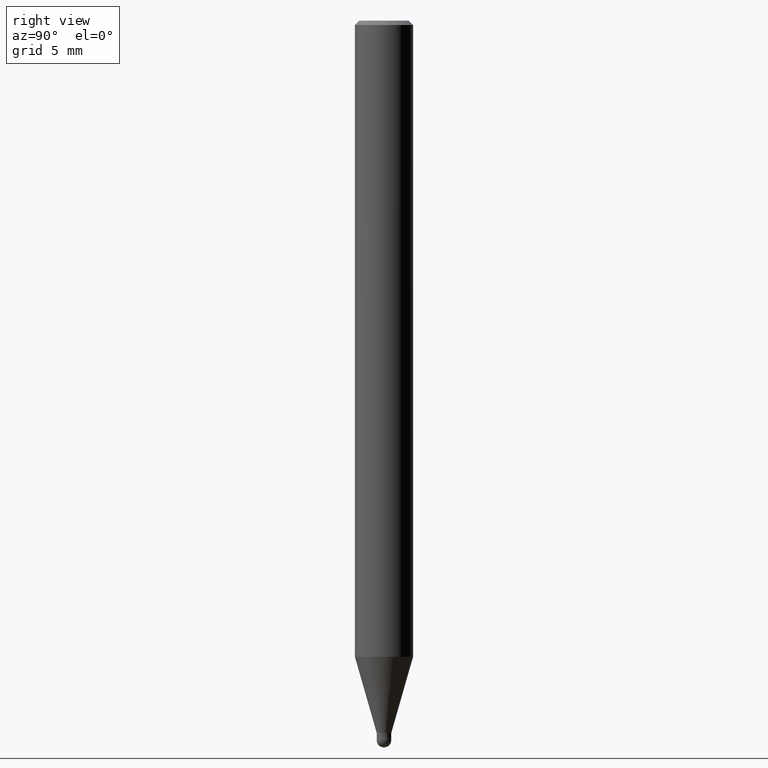
[diagram: clean part render]
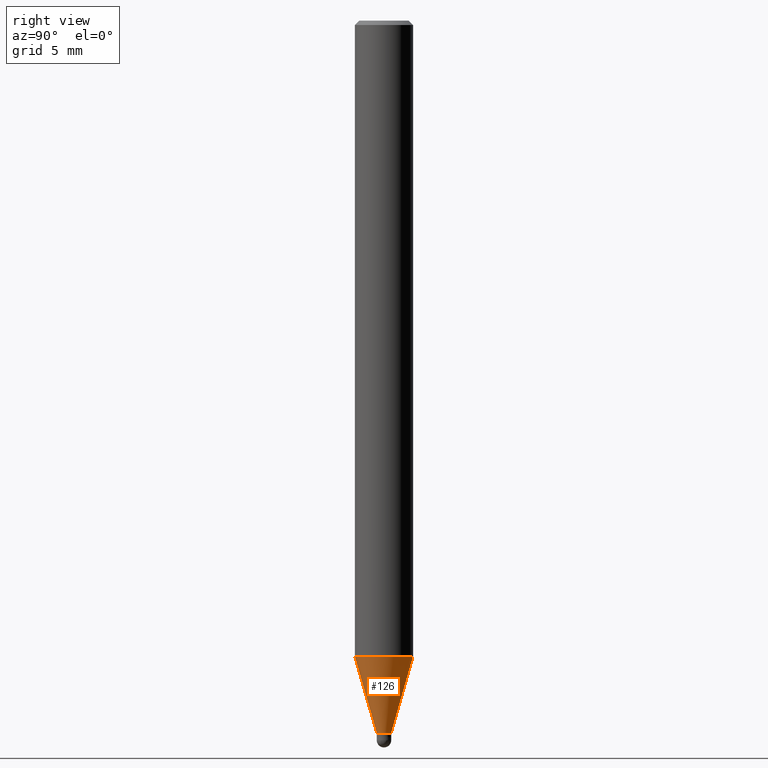
[diagram: same view with one face highlighted and labeled with its STEP entity id]
A machine part, right view. The second image highlights one B-rep face of the part: STEP entity #126.
In plain terms, the highlighted conical surface has half-angle 16 deg.
Its self-contained STEP definition (entity closure, byte-faithful):
#90=EDGE_CURVE('',#118,#134,#215,.T.);
#108=VERTEX_POINT('',#236);
#118=VERTEX_POINT('',#247);
#120=EDGE_CURVE('',#124,#108,#249,.T.);
#124=VERTEX_POINT('',#253);
#126=ADVANCED_FACE('',(#255),#256,.T.);
#134=VERTEX_POINT('',#265);
#142=EDGE_CURVE('',#108,#134,#273,.T.);
#150=EDGE_CURVE('',#118,#124,#282,.T.);
#215=CIRCLE('',#349,1.99995);
#236=CARTESIAN_POINT('',(6.12241946593498E-017,-0.49995,-49.0));
#247=CARTESIAN_POINT('',(0.0,1.99995,-43.769));
#249=CIRCLE('',#391,0.49995);
#253=CARTESIAN_POINT('',(0.0,0.49995,-49.0));
#255=FACE_OUTER_BOUND('',#397,.T.);
#256=CONICAL_SURFACE('',#398,1.24995,0.279258842899557);
#265=CARTESIAN_POINT('',(2.44915147732706E-016,-1.99995,-43.769));
#273=LINE('',#416,#417);
#282=LINE('',#428,#429);
#349=AXIS2_PLACEMENT_3D('',#496,#497,#498);
#391=AXIS2_PLACEMENT_3D('',#540,#541,#542);
#397=EDGE_LOOP('',(#544,#545,#546,#547));
#398=AXIS2_PLACEMENT_3D('',#548,#549,#550);
#416=CARTESIAN_POINT('',(1.53069671196028E-016,-1.24995,-46.3845));
#417=VECTOR('',#567,1.0);
#428=CARTESIAN_POINT('',(-1.53069671196028E-016,1.24995,-46.3845));
#429=VECTOR('',#579,1.0);
#496=CARTESIAN_POINT('',(0.0,0.0,-43.769));
#497=DIRECTION('',(0.0,0.0,-1.0));
#498=DIRECTION('',(0.0,1.0,0.0));
#540=CARTESIAN_POINT('',(0.0,0.0,-49.0));
#541=DIRECTION('',(0.0,0.0,-1.0));
#542=DIRECTION('',(0.0,1.0,0.0));
#544=ORIENTED_EDGE('',*,*,#150,.F.);
#545=ORIENTED_EDGE('',*,*,#90,.T.);
#546=ORIENTED_EDGE('',*,*,#142,.F.);
#547=ORIENTED_EDGE('',*,*,#120,.F.);
#548=CARTESIAN_POINT('',(0.0,0.0,-46.3845));
#549=DIRECTION('',(-0.0,-0.0,1.0));
#550=DIRECTION('',(0.0,1.0,0.0));
#567=DIRECTION('',(3.37554511665357E-017,-0.275643279664314,0.961259997282682));
#579=DIRECTION('',(3.37554511665357E-017,-0.275643279664314,-0.961259997282682));